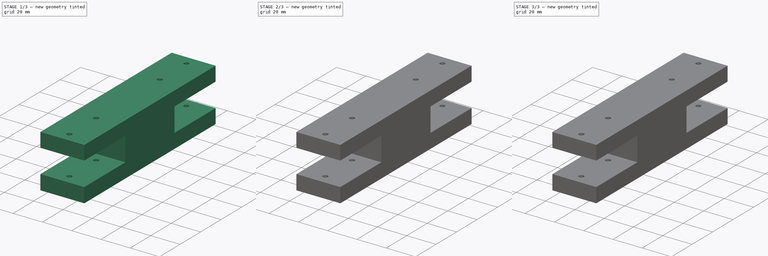
[diagram: build sequence overview — one tinted view per stage of 3, left to right]
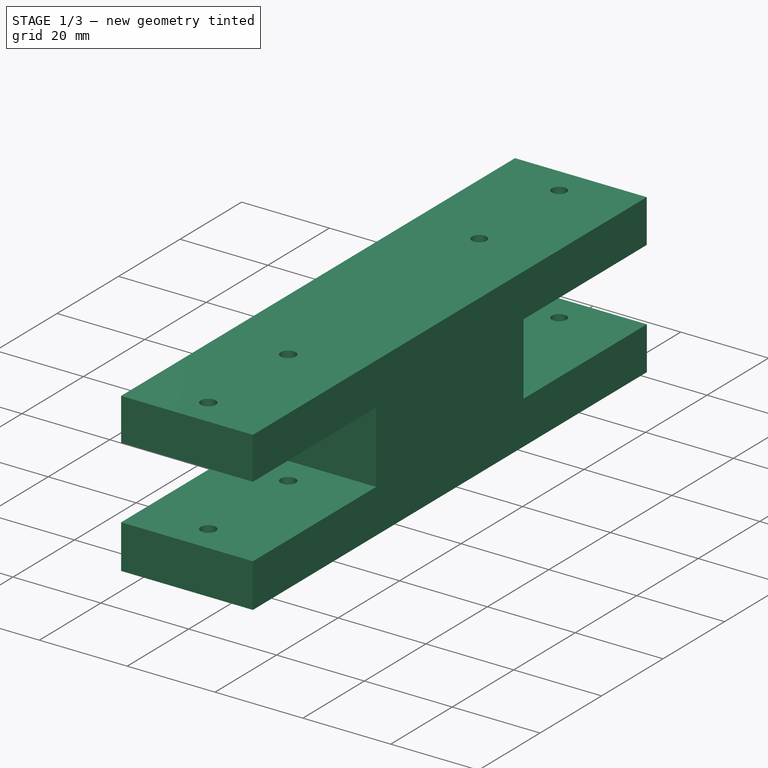
[diagram: stage 1 of 3 — iso view after this stage's code; geometry added in this stage tinted green]
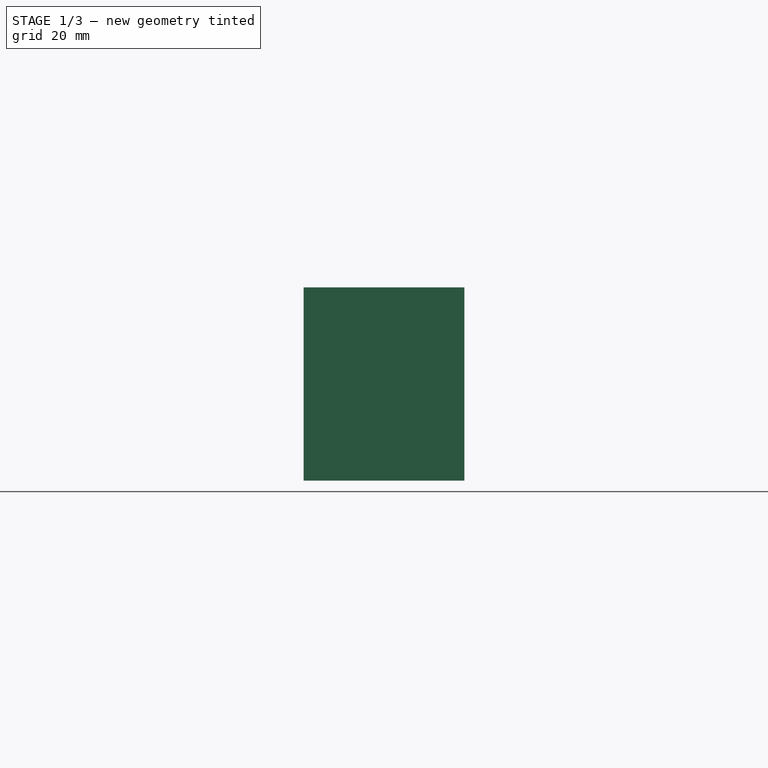
[diagram: stage 1 of 3 — front view after this stage's code; geometry added in this stage tinted green]
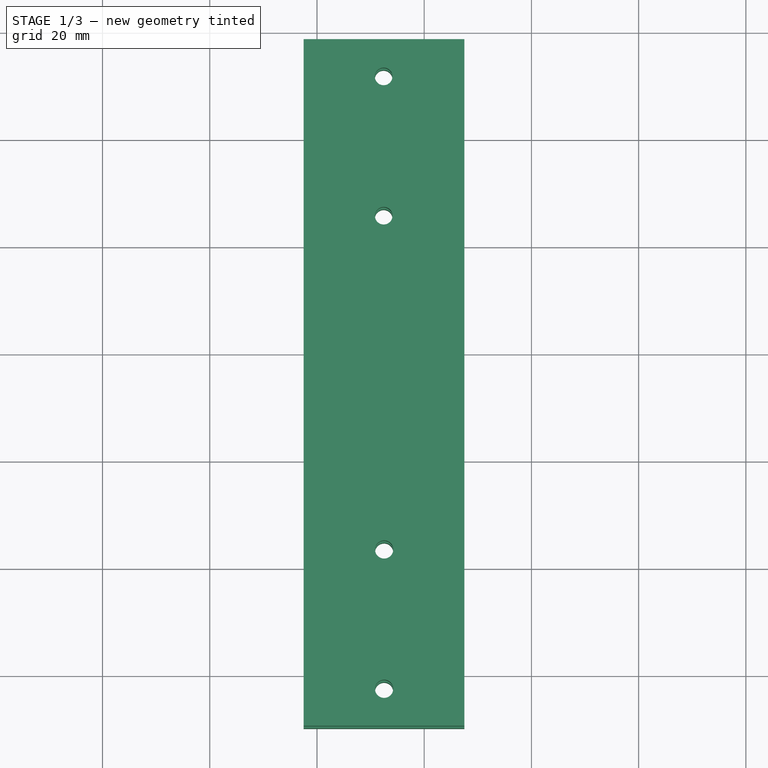
[diagram: stage 1 of 3 — top view after this stage's code; geometry added in this stage tinted green]
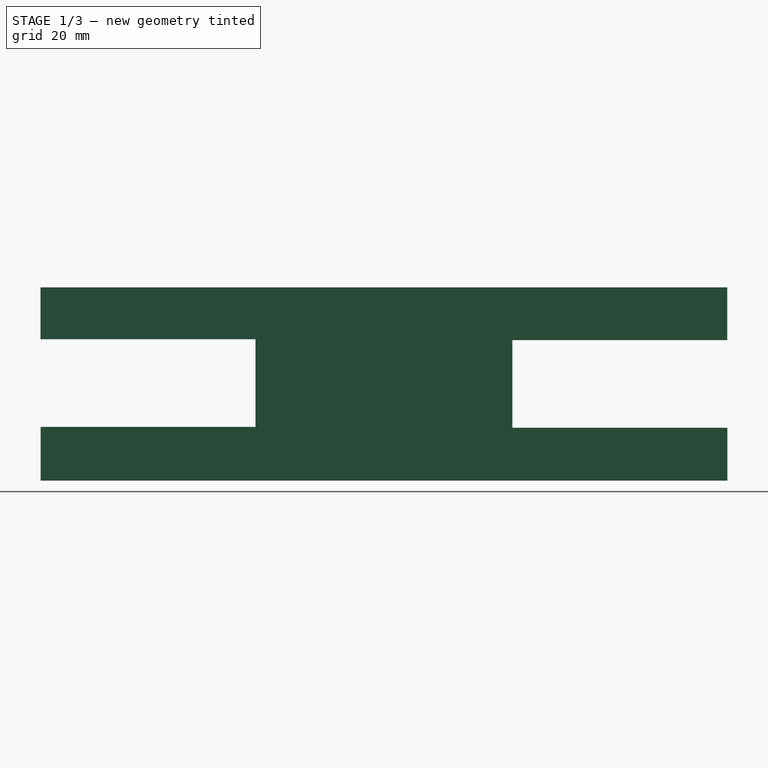
[diagram: stage 1 of 3 — right view after this stage's code; geometry added in this stage tinted green]
FCSTD DOCUMENT  (FreeCAD 2024.2R37179 (Git))
Label: Bottom_frame_connector
License: All rights reserved
LicenseURL: http://en.wikipedia.org/wiki/All_rights_reserved
objects: Sketcher::SketchObject×4, PartDesign::Pocket×4, PartDesign::Pad×1, PartDesign::Body×1
note: 15 computed .brp shape members not serialized (recipe doc carries the construction recipe); baked Part::Feature solids carry a one-line shape summary decoded from their .brp

FEATURE [Sketcher::SketchObject] Sketch
  FullyConstrained = false
  Placement = pos=(707.5,0,0) rot=(0.57735,0.57735,0.57735;2.0944rad)
  sketch-geometry (12):
    g0: LineSegment StartX=-29.8337 StartY=-213.381 StartZ=0 EndX=98.2428 EndY=-213.381 EndZ=0
    g1: LineSegment StartX=98.2428 StartY=-213.381 StartZ=0 EndX=98.2428 EndY=-223.224 EndZ=0
    g2: LineSegment StartX=98.2428 StartY=-223.224 StartZ=0 EndX=58.1766 EndY=-223.224 EndZ=0
    g3: LineSegment StartX=58.1766 StartY=-223.224 StartZ=0 EndX=58.1766 EndY=-239.564 EndZ=0
    g4: LineSegment StartX=58.1766 StartY=-239.564 StartZ=0 EndX=98.2839 EndY=-239.564 EndZ=0
    g5: LineSegment StartX=98.2839 StartY=-239.564 StartZ=0 EndX=98.2839 EndY=-249.413 EndZ=0
    g6: LineSegment StartX=98.2839 StartY=-249.413 StartZ=0 EndX=-29.8325 EndY=-249.413 EndZ=0
    g7: LineSegment StartX=-29.8325 StartY=-249.413 StartZ=0 EndX=-29.8325 EndY=-239.403 EndZ=0
    g8: LineSegment StartX=-29.8325 StartY=-239.403 StartZ=0 EndX=10.2493 EndY=-239.403 EndZ=0
    g9: LineSegment StartX=10.2493 StartY=-239.403 StartZ=0 EndX=10.2493 EndY=-223.039 EndZ=0
    g10: LineSegment StartX=10.2493 StartY=-223.039 StartZ=0 EndX=-29.8337 EndY=-223.039 EndZ=0
    g11: LineSegment StartX=-29.8337 StartY=-223.039 StartZ=0 EndX=-29.8337 EndY=-213.381 EndZ=0
  constraints (24):
    c: Horizontal(g0)
    c: Coincident(g0,g1)
    c: Vertical(g1)
    c: Coincident(g1,g2)
    c: Horizontal(g2)
    c: Coincident(g2,g3)
    c: Vertical(g3)
    c: Coincident(g3,g4)
    c: Horizontal(g4)
    c: Coincident(g4,g5)
    c: Vertical(g5)
    c: Coincident(g5,g6)
    c: Horizontal(g6)
    c: Coincident(g6,g7)
    c: Vertical(g7)
    c: Coincident(g7,g8)
    c: Horizontal(g8)
    c: Coincident(g8,g9)
    c: Vertical(g9)
    c: Coincident(g9,g10)
    c: Horizontal(g10)
    c: Coincident(g10,g11)
    c: Coincident(g11,g0)
    c: Vertical(g11)
FEATURE [PartDesign::Pad] Pad
  Direction = (1,-1e-16,2e-16)
  Length = 30
  Length2 = 10
  Placement = pos=(707.5,0,0) rot=(0.57735,0.57735,0.57735;2.0944rad)
  Profile = -> Sketch
  ReferenceAxis = -> Sketch [N_Axis]
  Reversed = true
  Suppressed = false
  Type = 0
FEATURE [Sketcher::SketchObject] Sketch001
  AttachmentSupport = -> [Pad]
  FullyConstrained = false
  MapMode = 5
  Placement = pos=(707.5,0,-213.381) rot=(0,0,-1;1.5708rad)
  sketch-geometry (4):
    g0: Circle CenterX=-91.2993 CenterY=-15.0721 CenterZ=0 NormalX=0 NormalY=0 NormalZ=1 AngleXU=0 Radius=1.64732
    g1: Circle CenterX=-65.3138 CenterY=-15.0565 CenterZ=0 NormalX=0 NormalY=0 NormalZ=1 AngleXU=0 Radius=1.64428
    g2: Circle CenterX=-3.04988 CenterY=-14.9774 CenterZ=0 NormalX=0 NormalY=0 NormalZ=1 AngleXU=0 Radius=1.70217
    g3: Circle CenterX=22.9412 CenterY=-14.9807 CenterZ=0 NormalX=0 NormalY=0 NormalZ=1 AngleXU=0 Radius=1.70321
FEATURE [Sketcher::SketchObject] Sketch002
  AttachmentOffset = pos=(0,0,-249.6) rot=(0,0,1;0rad)
  AttachmentSupport = -> [XY_Plane]
  FullyConstrained = false
  MapMode = 5
  Placement = pos=(0,0,-249.6) rot=(0,0,1;0rad)
  sketch-geometry (28):
    g0: LineSegment StartX=689.719 StartY=-21.3488 StartZ=0 EndX=689.713 EndY=-24.5849 EndZ=0
    g1: LineSegment StartX=689.713 StartY=-24.5849 StartZ=0 EndX=692.512 EndY=-26.208 EndZ=0
    g2: LineSegment StartX=692.512 StartY=-26.208 StartZ=0 EndX=695.318 EndY=-24.595 EndZ=0
    g3: LineSegment StartX=695.318 StartY=-24.595 StartZ=0 EndX=695.324 EndY=-21.3589 EndZ=0
    g4: LineSegment StartX=695.324 StartY=-21.3589 StartZ=0 EndX=692.524 EndY=-19.7358 EndZ=0
    g5: LineSegment StartX=692.524 StartY=-19.7358 StartZ=0 EndX=689.719 EndY=-21.3488 EndZ=0
    g6: Circle CenterX=692.518 CenterY=-22.9719 CenterZ=0 NormalX=0 NormalY=0 NormalZ=1 AngleXU=0 Radius=3.23612
    g7: LineSegment StartX=689.965 StartY=5.02151 StartZ=0 EndX=689.563 EndY=1.8065 EndZ=0
    g8: LineSegment StartX=689.563 StartY=1.8065 StartZ=0 EndX=692.146 EndY=-0.148822 EndZ=0
    g9: LineSegment StartX=692.146 StartY=-0.148822 StartZ=0 EndX=695.131 EndY=1.11087 EndZ=0
    g10: LineSegment StartX=695.131 StartY=1.11087 StartZ=0 EndX=695.533 EndY=4.32588 EndZ=0
    g11: LineSegment StartX=695.533 StartY=4.32588 StartZ=0 EndX=692.95 EndY=6.2812 EndZ=0
    g12: LineSegment StartX=692.95 StartY=6.2812 StartZ=0 EndX=689.965 EndY=5.02151 EndZ=0
    g13: Circle CenterX=692.548 CenterY=3.06619 CenterZ=0 NormalX=0 NormalY=0 NormalZ=1 AngleXU=0 Radius=3.24
    g14: LineSegment StartX=689.71 StartY=63.5753 StartZ=0 EndX=692.576 EndY=62.0634 EndZ=0
    g15: LineSegment StartX=692.576 StartY=62.0634 StartZ=0 EndX=695.318 EndY=63.7891 EndZ=0
    g16: LineSegment StartX=695.318 StartY=63.7891 StartZ=0 EndX=695.195 EndY=67.0268 EndZ=0
    g17: LineSegment StartX=695.195 StartY=67.0268 StartZ=0 EndX=692.329 EndY=68.5387 EndZ=0
    g18: LineSegment StartX=692.329 StartY=68.5387 StartZ=0 EndX=689.587 EndY=66.813 EndZ=0
    g19: LineSegment StartX=689.587 StartY=66.813 StartZ=0 EndX=689.71 EndY=63.5753 EndZ=0
    g20: Circle CenterX=692.453 CenterY=65.301 CenterZ=0 NormalX=0 NormalY=0 NormalZ=1 AngleXU=0 Radius=3.24
    g21: LineSegment StartX=689.714 StartY=93.0466 StartZ=0 EndX=689.545 EndY=89.811 EndZ=0
    g22: LineSegment StartX=689.545 StartY=89.811 StartZ=0 EndX=692.263 EndY=88.0468 EndZ=0
    g23: LineSegment StartX=692.263 StartY=88.0468 StartZ=0 EndX=695.15 EndY=89.5182 EndZ=0
    g24: LineSegment StartX=695.15 StartY=89.5182 StartZ=0 EndX=695.319 EndY=92.7538 EndZ=0
    g25: LineSegment StartX=695.319 StartY=92.7538 StartZ=0 EndX=692.601 EndY=94.518 EndZ=0
    g26: LineSegment StartX=692.601 StartY=94.518 StartZ=0 EndX=689.714 EndY=93.0466 EndZ=0
    g27: Circle CenterX=692.432 CenterY=91.2824 CenterZ=0 NormalX=0 NormalY=0 NormalZ=1 AngleXU=0 Radius=3.24
  constraints (52):
    c: Coincident(g0,g1)
    c: Coincident(g1,g2)
    c: Coincident(g2,g3)
    c: Coincident(g3,g4)
    c: Coincident(g4,g5)
    c: Coincident(g5,g0)
    c: Equal(g0, g1-g5) x5
    c: PointOnObject(g0,g6)
    c: PointOnObject(g1,g6)
    c: PointOnObject(g2,g6)
    c: PointOnObject(g3,g6)
    c: PointOnObject(g4,g6)
    c: PointOnObject(g5,g6)
    c: Coincident(g7,g8)
    c: Coincident(g8,g9)
    c: Coincident(g9,g10)
    c: Coincident(g10,g11)
    c: Coincident(g11,g12)
    c: Coincident(g12,g7)
    c: Equal(g7, g8-g12) x5
    c: PointOnObject(g7,g13)
    c: PointOnObject(g8,g13)
    c: PointOnObject(g9,g13)
    c: PointOnObject(g10,g13)
    c: PointOnObject(g11,g13)
    c: PointOnObject(g12,g13)
    c: Coincident(g14,g15)
    c: Coincident(g15,g16)
    c: Coincident(g16,g17)
    c: Coincident(g17,g18)
    c: Coincident(g18,g19)
    c: Coincident(g19,g14)
    c: Equal(g14, g15-g19) x5
    c: PointOnObject(g14,g20)
    c: PointOnObject(g15,g20)
    c: PointOnObject(g16,g20)
    c: PointOnObject(g17,g20)
    c: PointOnObject(g18,g20)
    c: PointOnObject(g19,g20)
    c: Coincident(g21,g22)
    c: Coincident(g22,g23)
    c: Coincident(g23,g24)
    c: Coincident(g24,g25)
    c: Coincident(g25,g26)
    c: Coincident(g26,g21)
    c: Equal(g21, g22-g26) x5
    c: PointOnObject(g21,g27)
    c: PointOnObject(g22,g27)
    c: PointOnObject(g23,g27)
    c: PointOnObject(g24,g27)
    c: PointOnObject(g25,g27)
    c: PointOnObject(g26,g27)
FEATURE [PartDesign::Pocket] Pocket
  BaseFeature = -> Pad
  Direction = (0,0,-1)
  Length = 600
  Length2 = 600
  Placement = pos=(707.5,0,0) rot=(0.57735,0.57735,0.57735;2.0944rad)
  Profile = -> Sketch001
  ReferenceAxis = -> Sketch001 [N_Axis]
  Suppressed = false
  Type = 4
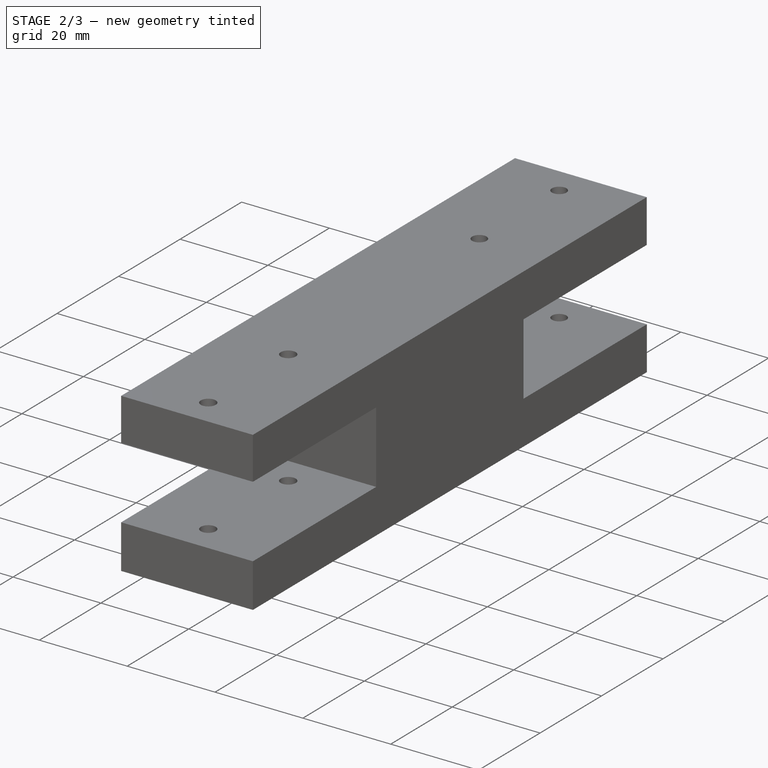
[diagram: stage 2 of 3 — iso view after this stage's code; geometry added in this stage tinted green]
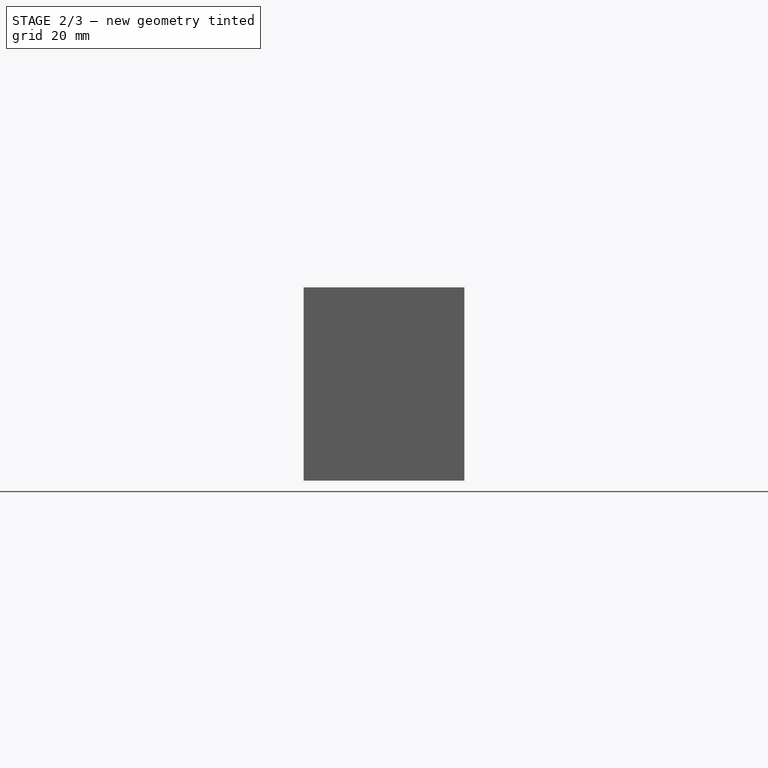
[diagram: stage 2 of 3 — front view after this stage's code; geometry added in this stage tinted green]
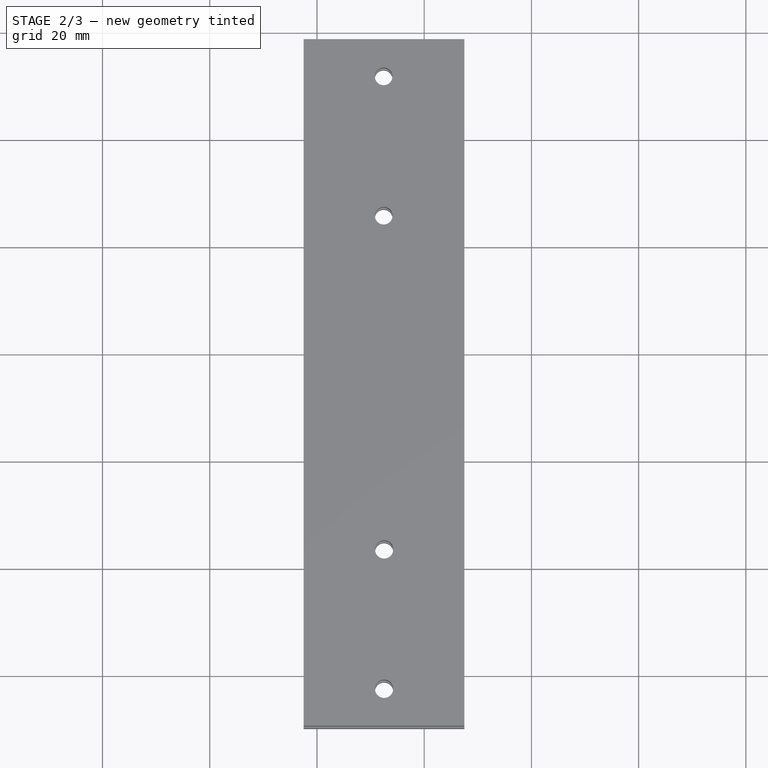
[diagram: stage 2 of 3 — top view after this stage's code; geometry added in this stage tinted green]
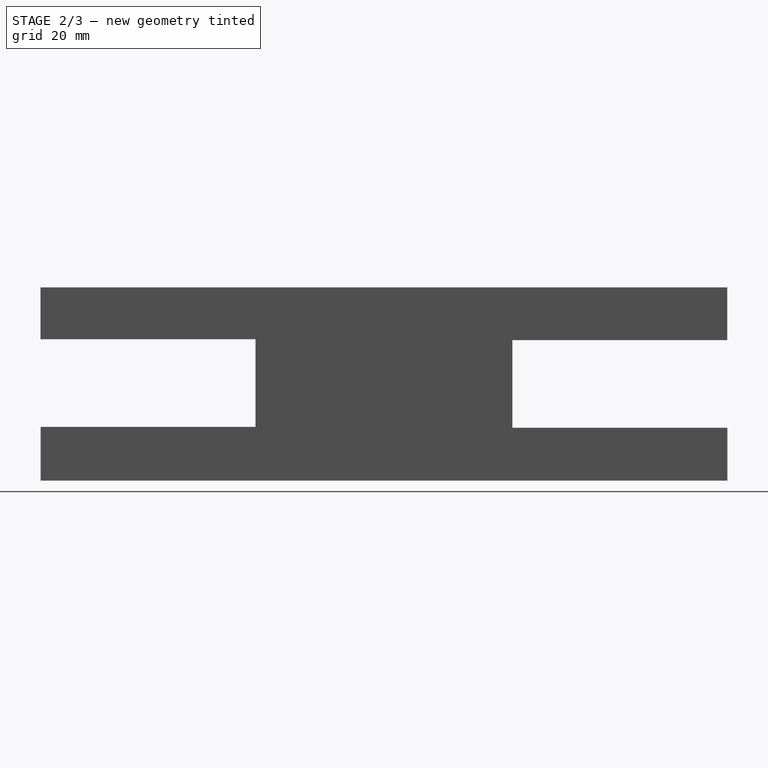
[diagram: stage 2 of 3 — right view after this stage's code; geometry added in this stage tinted green]
FEATURE [PartDesign::Pocket] Pocket001
  BaseFeature = -> Pocket
  Direction = (0,0,-1)
  Length = 3.3
  Length2 = 3.3
  Placement = pos=(707.5,0,0) rot=(0.57735,0.57735,0.57735;2.0944rad)
  Profile = -> Sketch002
  ReferenceAxis = -> Sketch002 [N_Axis]
  Suppressed = false
  Type = 4
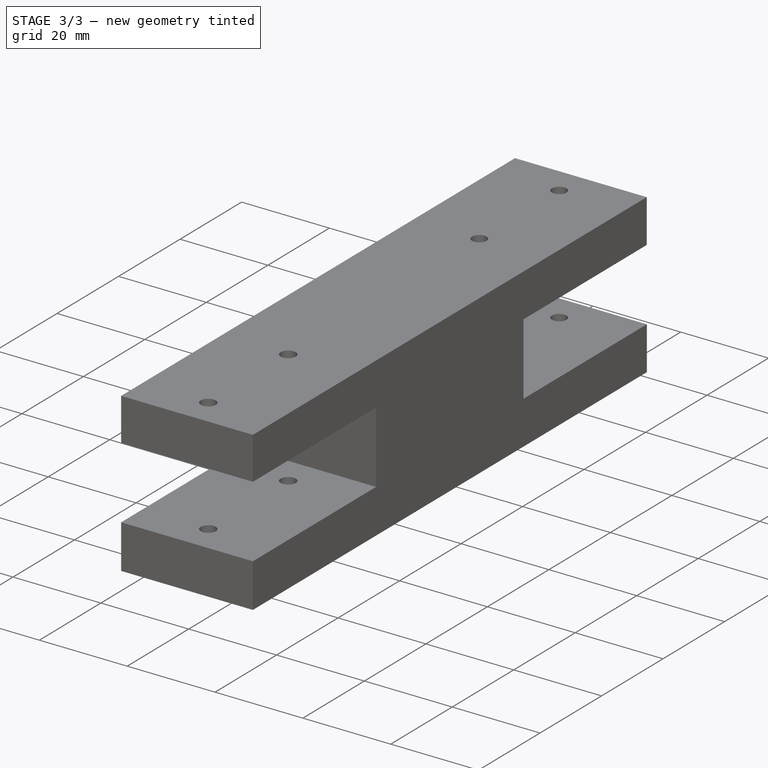
[diagram: stage 3 of 3 — iso view after this stage's code; geometry added in this stage tinted green]
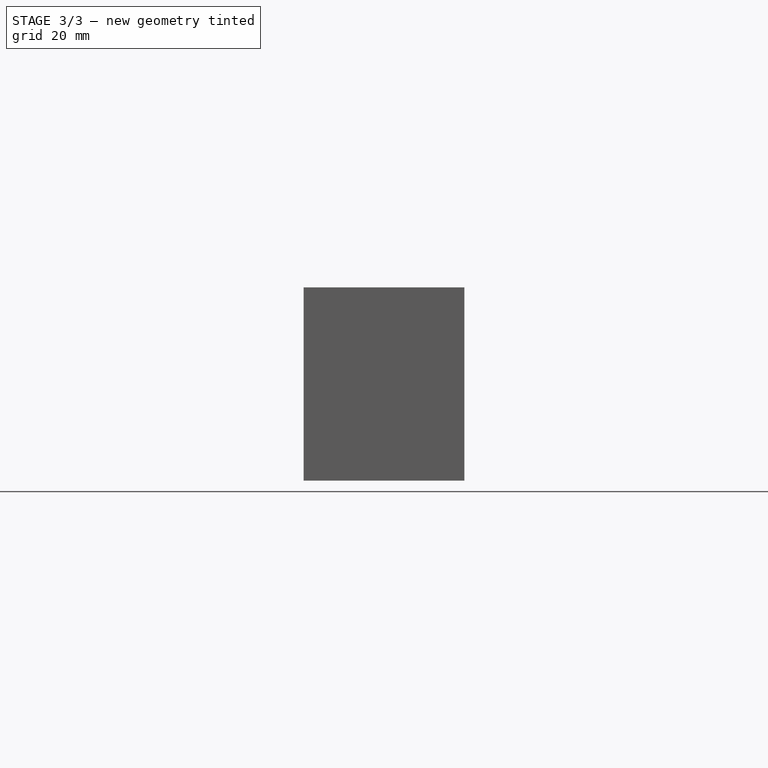
[diagram: stage 3 of 3 — front view after this stage's code; geometry added in this stage tinted green]
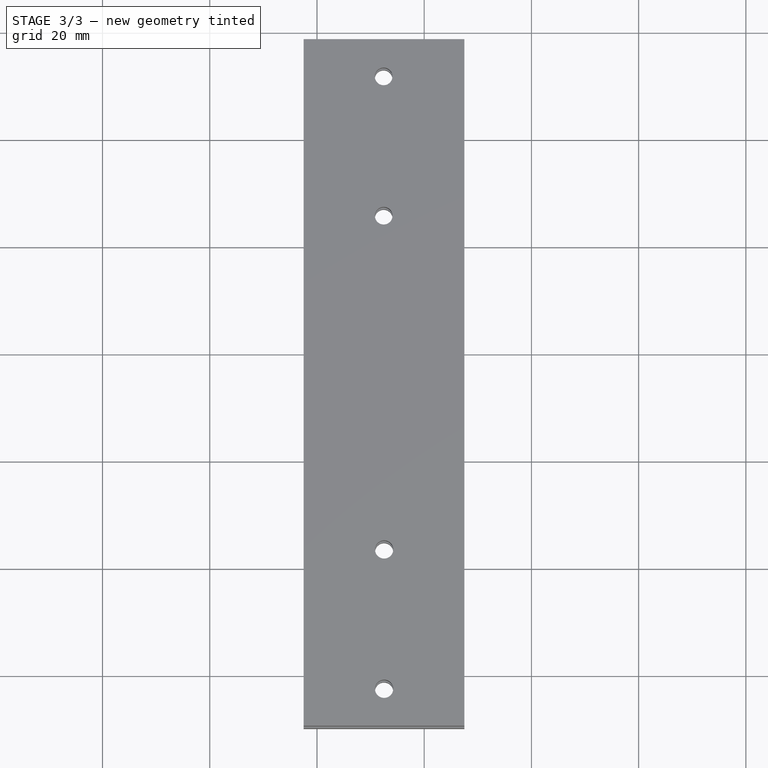
[diagram: stage 3 of 3 — top view after this stage's code; geometry added in this stage tinted green]
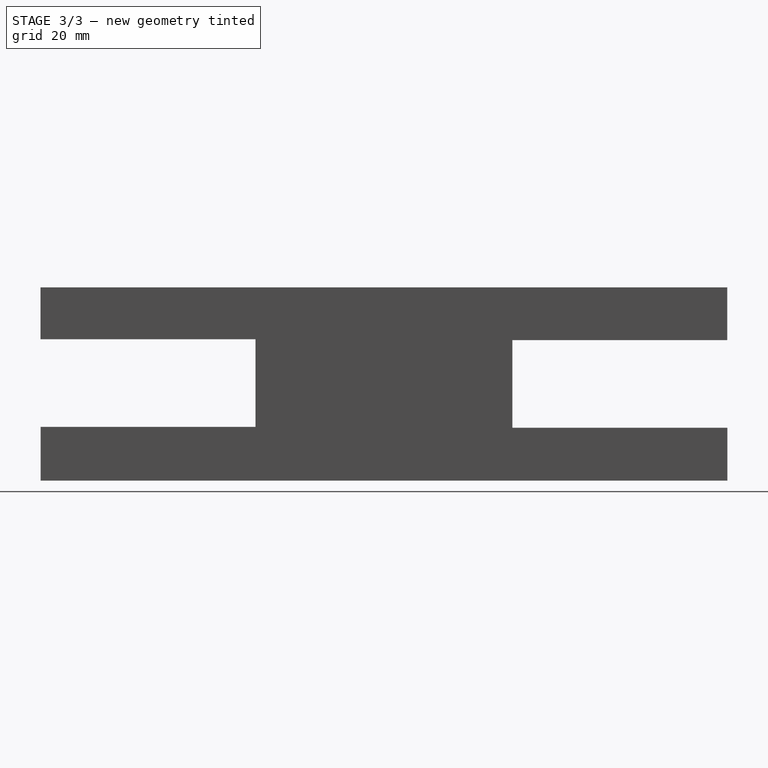
[diagram: stage 3 of 3 — right view after this stage's code; geometry added in this stage tinted green]
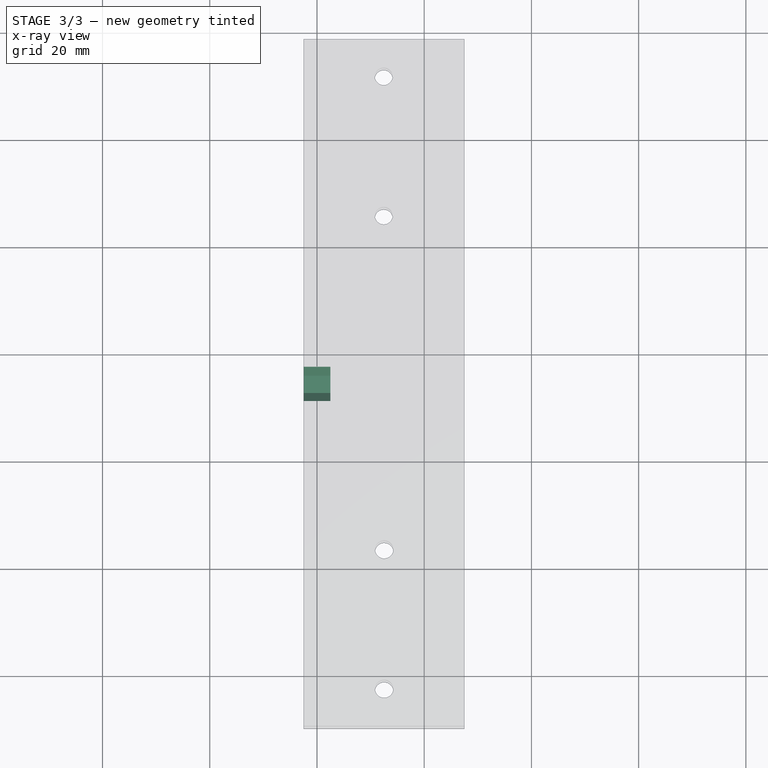
[diagram: stage 3 of 3 — x-ray composite at the top view; earlier geometry ghosted, this stage's added geometry solid]
FEATURE [Sketcher::SketchObject] Sketch005
  AttachmentSupport = -> [Pocket001]
  FullyConstrained = false
  MapMode = 5
  Placement = pos=(677.5,0,0) rot=(0.57735,0.57735,-0.57735;4.18879rad)
  sketch-geometry (9):
    g0: GeomPoint X=34.2147 Y=231.558 Z=0
    g1: Circle CenterX=34.2147 CenterY=231.558 CenterZ=0 NormalX=0 NormalY=0 NormalZ=1 AngleXU=0 Radius=1.5
    g2: LineSegment StartX=37.4392 StartY=231.558 StartZ=0 EndX=35.8269 EndY=234.35 EndZ=0
    g3: LineSegment StartX=35.8269 StartY=234.35 StartZ=0 EndX=32.6024 EndY=234.35 EndZ=0
    g4: LineSegment StartX=32.6024 StartY=234.35 StartZ=0 EndX=30.9902 EndY=231.558 EndZ=0
    g5: LineSegment StartX=30.9902 StartY=231.558 StartZ=0 EndX=32.6024 EndY=228.765 EndZ=0
    g6: LineSegment StartX=32.6024 StartY=228.765 StartZ=0 EndX=35.8269 EndY=228.765 EndZ=0
    g7: LineSegment StartX=35.8269 StartY=228.765 StartZ=0 EndX=37.4392 EndY=231.558 EndZ=0
    g8: Circle CenterX=34.2147 CenterY=231.558 CenterZ=0 NormalX=0 NormalY=0 NormalZ=1 AngleXU=0 Radius=3.2245
  constraints (17):
    c: Radius(g1) = 1.5
    c: Coincident(g1,g0)
    c: Coincident(g2,g3)
    c: Coincident(g3,g4)
    c: Coincident(g4,g5)
    c: Coincident(g5,g6)
    c: Coincident(g6,g7)
    c: Coincident(g7,g2)
    c: Equal(g2, g3-g7) x5
    c: PointOnObject(g2,g8)
    c: PointOnObject(g3,g8)
    c: PointOnObject(g4,g8)
    c: PointOnObject(g5,g8)
    c: PointOnObject(g6,g8)
    c: PointOnObject(g7,g8)
    c: Radius(g8) = 3.2245
    c: Coincident(g8,g0)
FEATURE [PartDesign::Pocket] Pocket006
  BaseFeature = -> Pocket001
  Direction = (1,0,0)
  Length = 5
  Length2 = 5
  Placement = pos=(707.5,0,0) rot=(0.57735,0.57735,0.57735;2.0944rad)
  Profile = -> Sketch005
  ReferenceAxis = -> Sketch005 [N_Axis]
  Refine = true
  Suppressed = false
  Type = 0
FEATURE [PartDesign::Pocket] Pocket007
  BaseFeature = -> Pocket006
  Direction = (1,-1e-16,0)
  Length = 5
  Length2 = 5
  Placement = pos=(707.5,0,0) rot=(0.57735,0.57735,0.57735;2.0944rad)
  Profile = -> Pocket006 [Face59]
  Refine = true
  Suppressed = false
  Type = 0
FEATURE [PartDesign::Body] Body
  Group = -> [Sketch,Pad,Sketch001,Pocket,Sketch002,Pocket001,Sketch005,Pocket006,Pocket007]
  Origin = -> Origin
  Tip = -> Pocket007
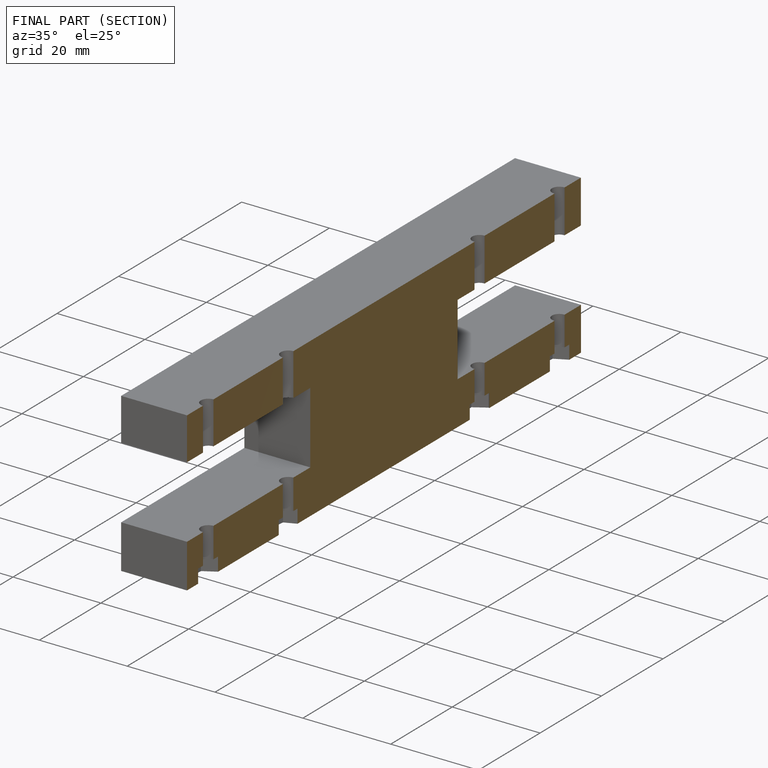
[diagram: finished part — half-section view (interior)]
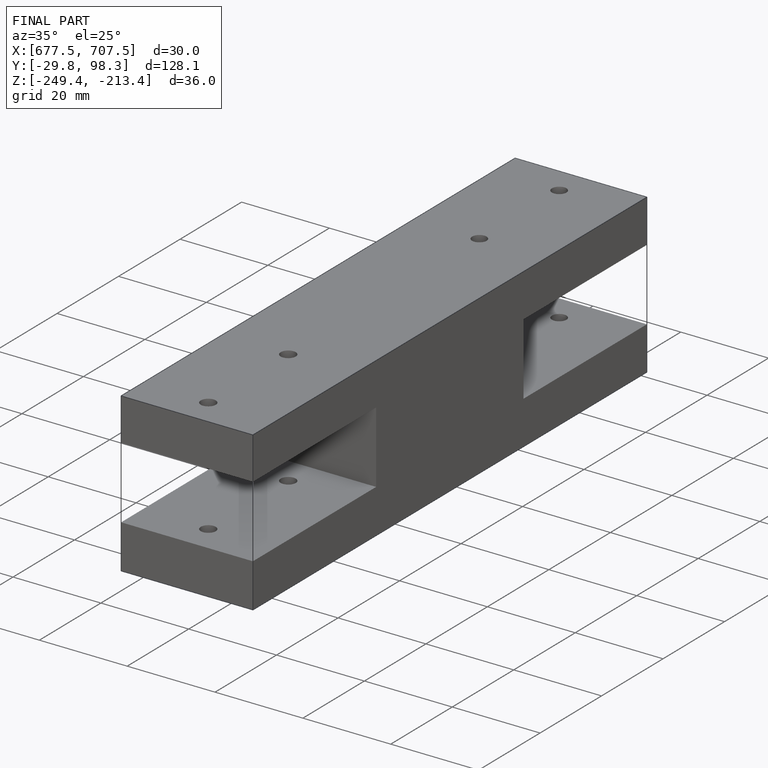
[diagram: finished part — iso view with bounding-box wireframe]
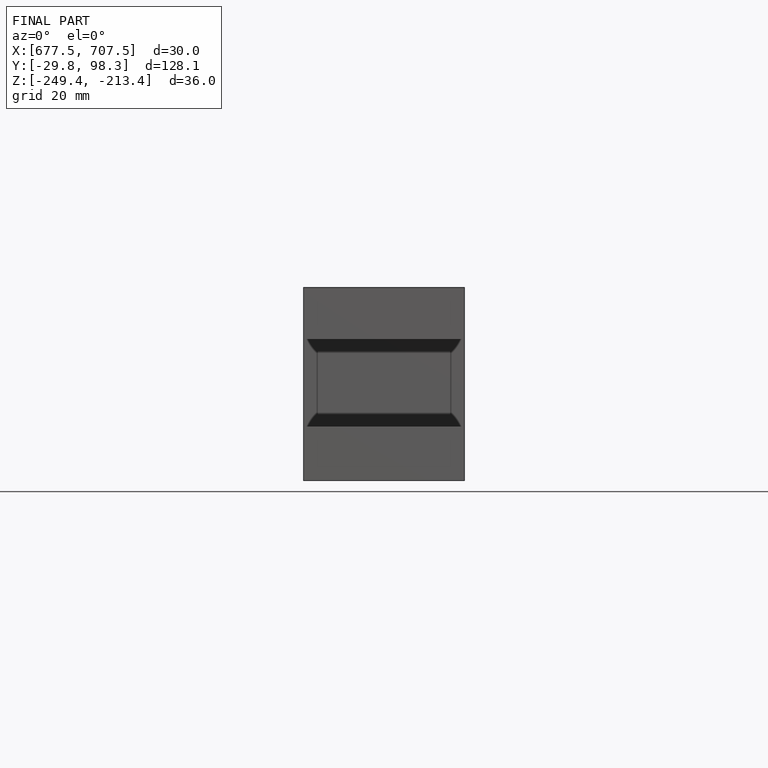
[diagram: finished part — front view with bounding-box wireframe]
